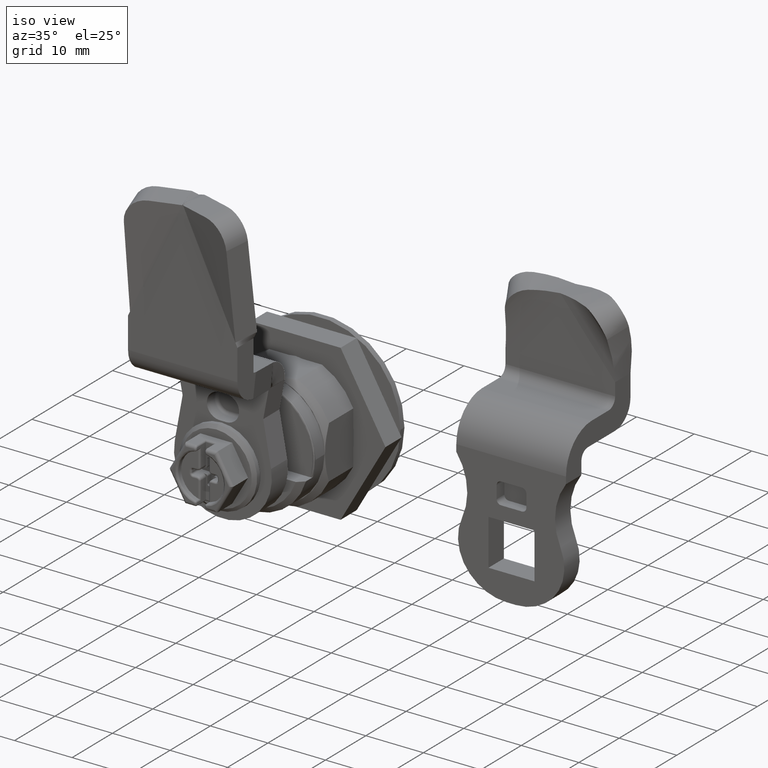
[diagram: clean part render]
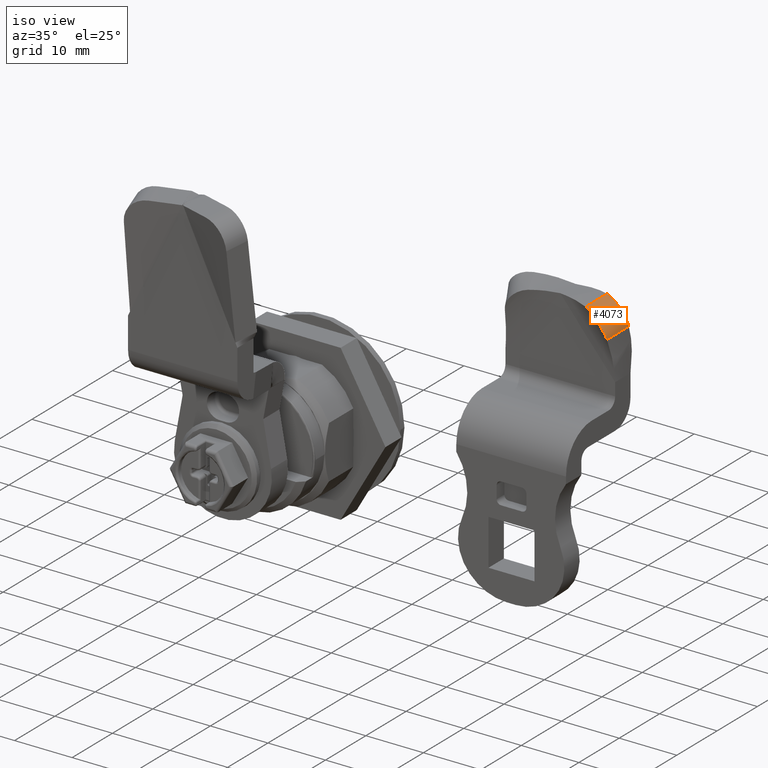
[diagram: same view with one face highlighted and labeled with its STEP entity id]
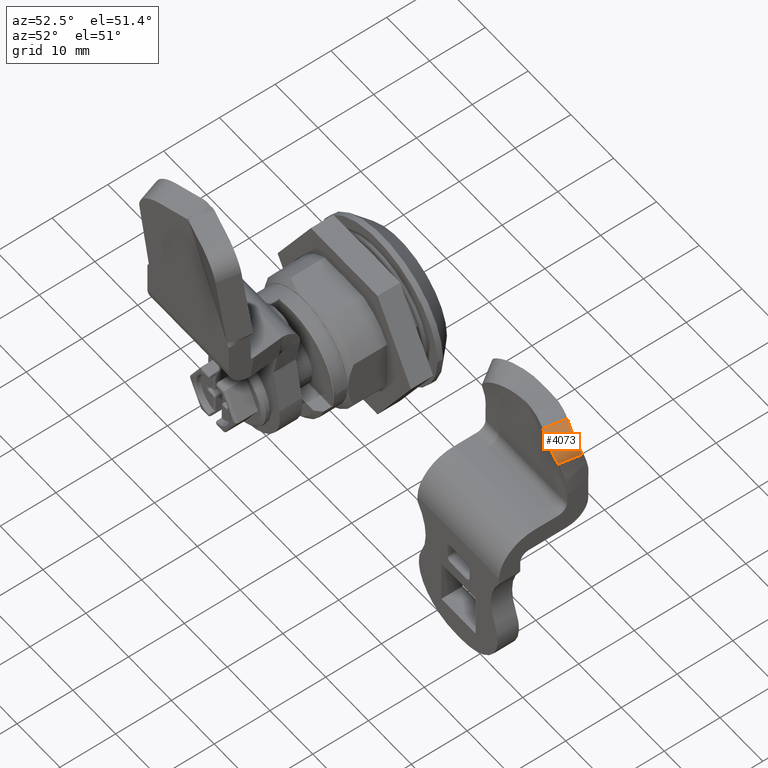
[diagram: same view with one face highlighted and labeled with its STEP entity id]
A machine part, iso view. The second image highlights one B-rep face of the part: STEP entity #4073.
A second angle (auxiliary view) of the same face is appended — the face is thin or edge-on in the first view.
In plain terms, the highlighted face is a freeform B-spline surface patch.
Its self-contained STEP definition (entity closure, byte-faithful):
#35 = CARTESIAN_POINT ( 'NONE',  ( 2.179528160267350412, -0.5001283866321569738, 1.377029921643454502 ) ) ;
#61 = CARTESIAN_POINT ( 'NONE',  ( 2.180831395695222774, -0.4995829328468665009, 1.376093961392495624 ) ) ;
#123 = CARTESIAN_POINT ( 'NONE',  ( 2.171704781698835962, -0.4963993391834077840, 1.378433313906254565 ) ) ;
#485 = B_SPLINE_CURVE_WITH_KNOTS ( 'NONE', 3,
 ( #9260, #123, #61, #13410, #7359, #10287, #12587, #11242, #1953, #4252, #5339, #10215, #3244, #997, #4118, #8227, #6219, #11510 ),
 .UNSPECIFIED., .F., .F.,
 ( 4, 2, 2, 2, 2, 2, 2, 2, 4 ),
 ( 5.834973636157267565E-12, 0.0007561855406888959297, 0.001512371075542818079, 0.002268556610396740229, 0.003024742145250662595, 0.003780927680104584961, 0.004537113214958507328, 0.005293298749812430128, 0.006049484284666352060 ),
 .UNSPECIFIED. ) ;
#527 = CARTESIAN_POINT ( 'NONE',  ( 2.344345616164353885, -0.4371863101714349442, 1.245049911713546509 ) ) ;
#685 = CARTESIAN_POINT ( 'NONE',  ( 2.314678634384084610, -0.5014833380331229495, 1.220327426896654854 ) ) ;
#696 = CARTESIAN_POINT ( 'NONE',  ( 2.319658265308107925, -0.4755532561781095069, 1.293768024083999046 ) ) ;
#769 = CARTESIAN_POINT ( 'NONE',  ( 2.312991348013293980, -0.5051754400324998118, 1.229144621014551353 ) ) ;
#997 = CARTESIAN_POINT ( 'NONE',  ( 2.300897755571591929, -0.5138721226134981279, 1.266519234594870813 ) ) ;
#1039 = CARTESIAN_POINT ( 'NONE',  ( 2.270523042648322054, -0.3825273983186028848, 1.421203636369759771 ) ) ;
#1179 = CARTESIAN_POINT ( 'NONE',  ( 2.284608311791305191, -0.4794538940747504752, 1.343963398667251452 ) ) ;
#1333 = VECTOR ( 'NONE', #12013, 39.37007874015748854 ) ;
#1650 = CARTESIAN_POINT ( 'NONE',  ( 2.189068533826799445, -0.4266204294785997941, 1.402019009765583135 ) ) ;
#1671 = CARTESIAN_POINT ( 'NONE',  ( 2.332787111049996920, -0.3988500604712387765, 1.379462775928426810 ) ) ;
#1717 = CARTESIAN_POINT ( 'NONE',  ( 2.342483362341212683, -0.4345745050377320395, 1.312790323274747539 ) ) ;
#1807 = CARTESIAN_POINT ( 'NONE',  ( 2.346641455499757445, -0.3988322127162817199, 1.362800534668431762 ) ) ;
#1858 = CARTESIAN_POINT ( 'NONE',  ( 2.296833168275002723, -0.5165320073184866967, 1.274745724893250998 ) ) ;
#1878 = CARTESIAN_POINT ( 'NONE',  ( 2.368105460734621026, -0.3910010325348331484, 1.320292544436144411 ) ) ;
#1947 = CARTESIAN_POINT ( 'NONE',  ( 2.312580066058202544, -0.3958244716372354977, 1.397392690831620099 ) ) ;
#1953 = CARTESIAN_POINT ( 'NONE',  ( 2.255052612479949481, -0.5182080819960149798, 1.330821210262375986 ) ) ;
#1992 = CARTESIAN_POINT ( 'NONE',  ( 2.327580579647455572, -0.4388616631267173718, 1.339658537145460793 ) ) ;
#2742 = CARTESIAN_POINT ( 'NONE',  ( 2.354348420839213585, -0.4155073063672035105, 1.253385582275927890 ) ) ;
#2764 = CARTESIAN_POINT ( 'NONE',  ( 2.374025511513401021, -0.3808945822755391841, 1.289914806333743114 ) ) ;
#2971 = CARTESIAN_POINT ( 'NONE',  ( 2.343361852235579690, -0.3990578050921282371, 1.367203318250799438 ) ) ;
#3218 = CARTESIAN_POINT ( 'NONE',  ( 2.238400627412263866, -0.3688824854697597133, 1.426090310930874905 ) ) ;
#3244 = CARTESIAN_POINT ( 'NONE',  ( 2.291808653662119610, -0.5168624501734548904, 1.283900769617875248 ) ) ;
#3491 = CARTESIAN_POINT ( 'NONE',  ( 2.215845588978242908, -0.3602142096792216863, 1.424333222391785725 ) ) ;
#3742 = CARTESIAN_POINT ( 'NONE',  ( 2.314312295879969561, -0.5022773007348372287, 1.220022144809890907 ) ) ;
#3830 = CARTESIAN_POINT ( 'NONE',  ( 2.235899738501164968, -0.3687455771173769326, 1.425657257166917713 ) ) ;
#4057 = EDGE_CURVE ( 'NONE', #8444, #7276, #10928, .T. ) ;
#4073 = ADVANCED_FACE ( 'NONE', ( #11215 ), #9659, .T. ) ;
#4087 = CARTESIAN_POINT ( 'NONE',  ( 2.261656206495269661, -0.4759346656502863038, 1.364233603244066284 ) ) ;
#4118 = CARTESIAN_POINT ( 'NONE',  ( 2.304754824066694407, -0.5119313499212352347, 1.257611260160695021 ) ) ;
#4164 = CARTESIAN_POINT ( 'NONE',  ( 2.180028687534220744, -0.4490389522198935390, 1.394485804521767625 ) ) ;
#4227 = CARTESIAN_POINT ( 'NONE',  ( 2.198097899318155690, -0.4042278987810714042, 1.409543481008381560 ) ) ;
#4231 = ORIENTED_EDGE ( 'NONE', *, *, #4528, .T. ) ;
#4252 = CARTESIAN_POINT ( 'NONE',  ( 2.268640173370713331, -0.5190745284706054230, 1.316321134233917833 ) ) ;
#4287 = CARTESIAN_POINT ( 'NONE',  ( 2.249040309903346468, -0.4247500426748600511, 1.403302462840525289 ) ) ;
#4528 = EDGE_CURVE ( 'NONE', #7276, #6781, #485, .T. ) ;
#5112 = CARTESIAN_POINT ( 'NONE',  ( 2.280811322767553939, -0.5197033950144767100, 1.300685679170065612 ) ) ;
#5179 = CARTESIAN_POINT ( 'NONE',  ( 2.304195951207506532, -0.4792825290705969299, 1.320172108157764868 ) ) ;
#5339 = CARTESIAN_POINT ( 'NONE',  ( 2.274931850589556603, -0.5190132360674816203, 1.308645414237875615 ) ) ;
#5789 = CARTESIAN_POINT ( 'NONE',  ( 2.333636685395834576, -0.4622808623291898011, 1.246349068833332518 ) ) ;
#5808 = CARTESIAN_POINT ( 'NONE',  ( 2.285135022064398225, -0.3879112593121289976, 1.413002603653060518 ) ) ;
#5895 = EDGE_CURVE ( 'NONE', #10769, #8444, #12565, .T. ) ;
#5992 = CARTESIAN_POINT ( 'NONE',  ( 2.350965208087408165, -0.3984407971828375916, 1.359144966133160271 ) ) ;
#6012 = CARTESIAN_POINT ( 'NONE',  ( 2.360485470677285313, -0.3957982368272386364, 1.339850090912996672 ) ) ;
#6041 = EDGE_LOOP ( 'NONE', ( #7931, #6354, #4231, #8321 ) ) ;
#6060 = CARTESIAN_POINT ( 'NONE',  ( 2.351976259339709330, -0.4265837320519583198, 1.283761130762984148 ) ) ;
#6081 = CARTESIAN_POINT ( 'NONE',  ( 2.294642291607600804, -0.3910145005453178890, 1.408478411271194553 ) ) ;
#6126 = CARTESIAN_POINT ( 'NONE',  ( 2.216167111102094633, -0.3594168453422477150, 1.424601157494995940 ) ) ;
#6219 = CARTESIAN_POINT ( 'NONE',  ( 2.313316300443743589, -0.5045078173099926122, 1.229828145220820179 ) ) ;
#6259 = CARTESIAN_POINT ( 'NONE',  ( 2.284543311881777949, -0.4350280182811012697, 1.383308030663234156 ) ) ;
#6354 = ORIENTED_EDGE ( 'NONE', *, *, #4057, .T. ) ;
#6781 = VERTEX_POINT ( 'NONE', #685 ) ;
#6858 = CARTESIAN_POINT ( 'NONE',  ( 2.308504717886303403, -0.5105404473769544760, 1.247544403432576665 ) ) ;
#7276 = VERTEX_POINT ( 'NONE', #13099 ) ;
#7333 = CARTESIAN_POINT ( 'NONE',  ( 2.308014324557325914, -0.4390385016719604572, 1.363468139751066177 ) ) ;
#7359 = CARTESIAN_POINT ( 'NONE',  ( 2.207481264660290154, -0.5081085143198332821, 1.365488910171421821 ) ) ;
#7393 = CARTESIAN_POINT ( 'NONE',  ( 2.227557577158371771, -0.4669726870311144418, 1.385401289311291029 ) ) ;
#7931 = ORIENTED_EDGE ( 'NONE', *, *, #5895, .T. ) ;
#7947 = CARTESIAN_POINT ( 'NONE',  ( 2.215845588978242908, -0.3602142096792216863, 1.424333222391785725 ) ) ;
#8009 = CARTESIAN_POINT ( 'NONE',  ( 2.374529434706863729, -0.3770125179684249983, 1.279857950194886795 ) ) ;
#8151 = CARTESIAN_POINT ( 'NONE',  ( 2.321202287354766636, -0.3975675608895054003, 1.390688528189151674 ) ) ;
#8227 = CARTESIAN_POINT ( 'NONE',  ( 2.310966297990012297, -0.5072573070248723726, 1.239283424681365764 ) ) ;
#8321 = ORIENTED_EDGE ( 'NONE', *, *, #13326, .F. ) ;
#8444 = VERTEX_POINT ( 'NONE', #3491 ) ;
#8978 = CARTESIAN_POINT ( 'NONE',  ( 2.370847447413526599, -0.3878756366689204427, 1.310064868726828147 ) ) ;
#9020 = CARTESIAN_POINT ( 'NONE',  ( 2.373712030066410517, -0.3846053743894625176, 1.301869494428185892 ) ) ;
#9092 = CARTESIAN_POINT ( 'NONE',  ( 2.334330358359590907, -0.4588923035510203419, 1.236703863542909732 ) ) ;
#9159 = CARTESIAN_POINT ( 'NONE',  ( 2.307430417268286238, -0.3941213709119162356, 1.402382458082399141 ) ) ;
#9232 = CARTESIAN_POINT ( 'NONE',  ( 2.331420337323346637, -0.3986231092691705502, 1.382972880834876905 ) ) ;
#9260 = CARTESIAN_POINT ( 'NONE',  ( 2.162290149293715213, -0.4930299454824282890, 1.379703689532370658 ) ) ;
#9304 = CARTESIAN_POINT ( 'NONE',  ( 2.206074844413399294, -0.5091953313873724962, 1.367500115782056769 ) ) ;
#9371 = CARTESIAN_POINT ( 'NONE',  ( 2.199152315982320083, -0.4563797529113582940, 1.393383384739257380 ) ) ;
#9659 = B_SPLINE_SURFACE_WITH_KNOTS ( 'NONE', 3, 3, ( 
 ( #13034, #2742, #9092, #3742 ),
 ( #9973, #10046, #5789, #769 ),
 ( #9020, #6060, #12961, #6858 ),
 ( #13173, #1717, #696, #1858 ),
 ( #5992, #1992, #5179, #5112 ),
 ( #9232, #7333, #1179, #10326 ),
 ( #9159, #6259, #4087, #12493 ),
 ( #1039, #4287, #7393, #9304 ),
 ( #3218, #11485, #9371, #35 ),
 ( #6126, #4227, #4164, #10392 ) ),
 .UNSPECIFIED., .F., .F., .F.,
 ( 4, 1, 1, 1, 1, 1, 1, 4 ),
 ( 4, 4 ),
 ( 0.000000000000000000, 0.1250000000000000000, 0.2500000000000000000, 0.3750000000000000000, 0.5000000000000000000, 0.6250000000000000000, 0.7500000000000000000, 1.000000000000000000 ),
 ( -0.006003538147670961500, 1.006174419716551416 ),
 .UNSPECIFIED. ) ;
#9798 = DIRECTION ( 'NONE',  ( -0.3955443274394402908, -0.8572602642990474475, -0.3296202728662299131 ) ) ;
#9973 = CARTESIAN_POINT ( 'NONE',  ( 2.374927360160904666, -0.3764917069225695023, 1.280757964470894184 ) ) ;
#10046 = CARTESIAN_POINT ( 'NONE',  ( 2.354282022778364514, -0.4193862846258800126, 1.263553516652113906 ) ) ;
#10207 = CARTESIAN_POINT ( 'NONE',  ( 2.256053120757091079, -0.3773553225883900519, 1.423200514035369846 ) ) ;
#10215 = CARTESIAN_POINT ( 'NONE',  ( 2.286517493662937994, -0.5179140830878552482, 1.292448148789103746 ) ) ;
#10287 = CARTESIAN_POINT ( 'NONE',  ( 2.224316790411862144, -0.5126290238673030242, 1.355698990041877439 ) ) ;
#10326 = CARTESIAN_POINT ( 'NONE',  ( 2.261202299025288909, -0.5198692864775404932, 1.324458657583439836 ) ) ;
#10392 = CARTESIAN_POINT ( 'NONE',  ( 2.161959475750282689, -0.4938500056587193376, 1.379428128035153911 ) ) ;
#10397 = VECTOR ( 'NONE', #9798, 39.37007874015748854 ) ;
#10769 = VERTEX_POINT ( 'NONE', #11187 ) ;
#10928 = LINE ( 'NONE', #1650, #1333 ) ;
#10956 = LINE ( 'NONE', #527, #10397 ) ;
#11187 = CARTESIAN_POINT ( 'NONE',  ( 2.374010283500005425, -0.3728942983882680418, 1.269770467826589311 ) ) ;
#11215 = FACE_OUTER_BOUND ( 'NONE', #6041, .T. ) ;
#11235 = CARTESIAN_POINT ( 'NONE',  ( 2.336447156916008350, -0.3990644124441057872, 1.375514671670573064 ) ) ;
#11242 = CARTESIAN_POINT ( 'NONE',  ( 2.247689718573727902, -0.5172633208946733063, 1.337690178543210262 ) ) ;
#11485 = CARTESIAN_POINT ( 'NONE',  ( 2.218776471697297303, -0.4126311191905595033, 1.409736847835068030 ) ) ;
#11510 = CARTESIAN_POINT ( 'NONE',  ( 2.314678634384084610, -0.5014833380331229495, 1.220327426896654854 ) ) ;
#12013 = DIRECTION ( 'NONE',  ( -0.3570362631105896689, -0.8854382392080266673, -0.2975302192588427652 ) ) ;
#12033 = CARTESIAN_POINT ( 'NONE',  ( 2.374010283500005425, -0.3728942983882680418, 1.269770467826589311 ) ) ;
#12493 = CARTESIAN_POINT ( 'NONE',  ( 2.238769101108761816, -0.5168413130194713379, 1.345159175824902187 ) ) ;
#12565 = B_SPLINE_CURVE_WITH_KNOTS ( 'NONE', 3,
 ( #12033, #8009, #2764, #8978, #1878, #6012, #13121, #1807, #2971, #11235, #1671, #8151, #1947, #6081, #5808, #10207, #3830, #7947 ),
 .UNSPECIFIED., .F., .F.,
 ( 4, 2, 2, 2, 2, 2, 2, 2, 4 ),
 ( 7.384300342650183380E-17, 0.0008206787991395789791, 0.001641357598279084232, 0.002462036397418589269, 0.002872375796988342004, 0.003282715196558094305, 0.004103393995697571586, 0.004924072794837047566, 0.006565430393115975240 ),
 .UNSPECIFIED. ) ;
#12587 = CARTESIAN_POINT ( 'NONE',  ( 2.232333649546671239, -0.5144709744068935997, 1.350107588882651477 ) ) ;
#12961 = CARTESIAN_POINT ( 'NONE',  ( 2.330240488613004590, -0.4685620897144582853, 1.265652767097778408 ) ) ;
#13034 = CARTESIAN_POINT ( 'NONE',  ( 2.374366483318837151, -0.3721223091833862351, 1.270067301008945604 ) ) ;
#13099 = CARTESIAN_POINT ( 'NONE',  ( 2.162290149293715213, -0.4930299454824282890, 1.379703689532370658 ) ) ;
#13121 = CARTESIAN_POINT ( 'NONE',  ( 2.355626676014147325, -0.3975101646808362754, 1.349259051153925748 ) ) ;
#13173 = CARTESIAN_POINT ( 'NONE',  ( 2.365308459374321881, -0.3935957538973525183, 1.331812622465495366 ) ) ;
#13326 = EDGE_CURVE ( 'NONE', #10769, #6781, #10956, .T. ) ;
#13410 = CARTESIAN_POINT ( 'NONE',  ( 2.198680386094514549, -0.5054268178751997187, 1.369649630588548161 ) ) ;